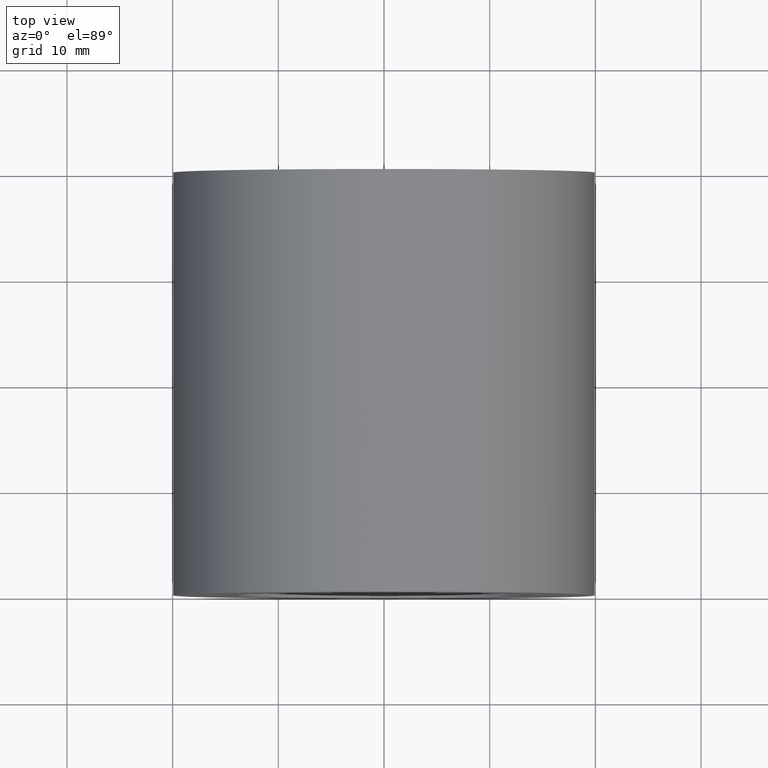
[diagram: clean part render]
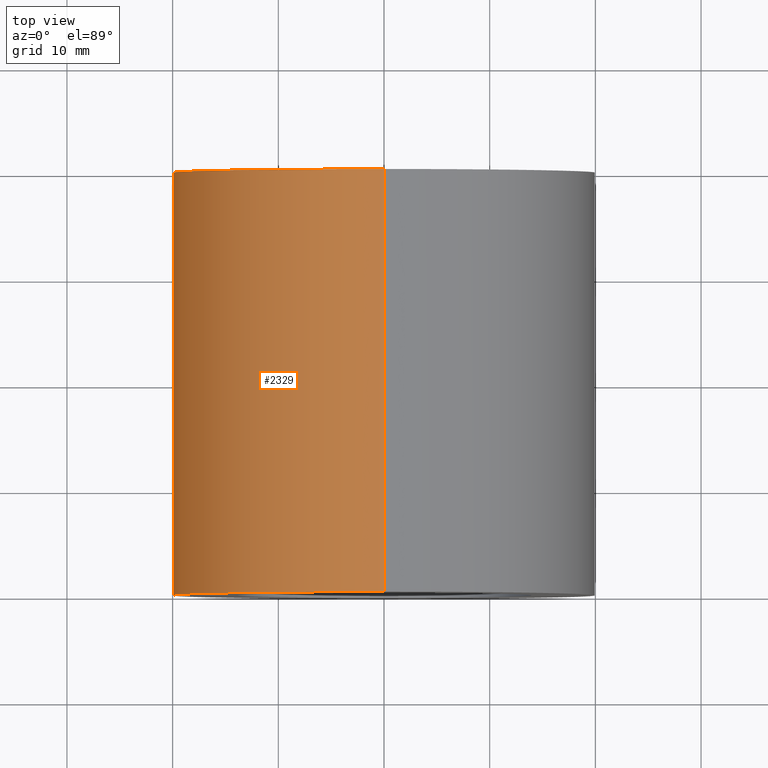
[diagram: same view with one face highlighted and labeled with its STEP entity id]
A machine part, top view. The second image highlights one B-rep face of the part: STEP entity #2329.
In plain terms, the highlighted cylindrical surface (partial cylindrical patch) has radius 20 mm, axis along (-0, 1, -0).
Its self-contained STEP definition (entity closure, byte-faithful):
#35 = ORIENTED_EDGE ( 'NONE', *, *, #2003, .T. ) ;
#67 = CARTESIAN_POINT ( 'NONE',  ( 0.000000000000000000, 40.00000000000000000, 0.000000000000000000 ) ) ;
#401 = VECTOR ( 'NONE', #14401, 1000.000000000000000 ) ;
#403 = CARTESIAN_POINT ( 'NONE',  ( 2.449293598294708485E-15, 40.00000000000000000, -20.00000000000001776 ) ) ;
#934 = LINE ( 'NONE', #4705, #401 ) ;
#2003 = EDGE_CURVE ( 'NONE', #14353, #12767, #11589, .T. ) ;
#2143 = LINE ( 'NONE', #9937, #13534 ) ;
#2160 = CARTESIAN_POINT ( 'NONE',  ( 0.000000000000000000, 40.00000000000000000, 0.000000000000000000 ) ) ;
#2329 = ADVANCED_FACE ( 'NONE', ( #11419 ), #14771, .T. ) ;
#2556 = DIRECTION ( 'NONE',  ( -0.000000000000000000, 1.000000000000000000, -0.000000000000000000 ) ) ;
#2607 = AXIS2_PLACEMENT_3D ( 'NONE', #67, #7121, #5927 ) ;
#3675 = AXIS2_PLACEMENT_3D ( 'NONE', #2160, #4690, #14171 ) ;
#3895 = DIRECTION ( 'NONE',  ( 0.000000000000000000, 0.000000000000000000, 1.000000000000000000 ) ) ;
#4117 = DIRECTION ( 'NONE',  ( -0.000000000000000000, 1.000000000000000000, -0.000000000000000000 ) ) ;
#4690 = DIRECTION ( 'NONE',  ( -0.000000000000000000, 1.000000000000000000, -0.000000000000000000 ) ) ;
#4705 = CARTESIAN_POINT ( 'NONE',  ( 2.449293598294707302E-15, 40.00000000000000000, -20.00000000000000711 ) ) ;
#5041 = EDGE_CURVE ( 'NONE', #14353, #9663, #934, .T. ) ;
#5192 = CARTESIAN_POINT ( 'NONE',  ( 0.000000000000000000, 40.00000000000000000, 20.00000000000001421 ) ) ;
#5927 = DIRECTION ( 'NONE',  ( 0.000000000000000000, 0.000000000000000000, 1.000000000000000000 ) ) ;
#6373 = EDGE_LOOP ( 'NONE', ( #8201, #35, #13458, #14109 ) ) ;
#7121 = DIRECTION ( 'NONE',  ( -0.000000000000000000, 1.000000000000000000, -0.000000000000000000 ) ) ;
#8201 = ORIENTED_EDGE ( 'NONE', *, *, #5041, .F. ) ;
#9657 = CARTESIAN_POINT ( 'NONE',  ( 0.000000000000000000, 0.000000000000000000, 0.000000000000000000 ) ) ;
#9663 = VERTEX_POINT ( 'NONE', #403 ) ;
#9937 = CARTESIAN_POINT ( 'NONE',  ( 0.000000000000000000, 40.00000000000000000, 20.00000000000000711 ) ) ;
#11419 = FACE_OUTER_BOUND ( 'NONE', #6373, .T. ) ;
#11589 = CIRCLE ( 'NONE', #12681, 20.00000000000000000 ) ;
#11910 = EDGE_CURVE ( 'NONE', #12767, #12537, #2143, .T. ) ;
#12537 = VERTEX_POINT ( 'NONE', #5192 ) ;
#12617 = CARTESIAN_POINT ( 'NONE',  ( 0.000000000000000000, 0.000000000000000000, 20.00000000000000000 ) ) ;
#12681 = AXIS2_PLACEMENT_3D ( 'NONE', #9657, #2556, #3895 ) ;
#12767 = VERTEX_POINT ( 'NONE', #12617 ) ;
#12957 = EDGE_CURVE ( 'NONE', #9663, #12537, #15143, .T. ) ;
#13458 = ORIENTED_EDGE ( 'NONE', *, *, #11910, .T. ) ;
#13534 = VECTOR ( 'NONE', #4117, 1000.000000000000000 ) ;
#13748 = CARTESIAN_POINT ( 'NONE',  ( 2.449293598294706907E-15, 0.000000000000000000, -20.00000000000000000 ) ) ;
#14109 = ORIENTED_EDGE ( 'NONE', *, *, #12957, .F. ) ;
#14171 = DIRECTION ( 'NONE',  ( 0.000000000000000000, 0.000000000000000000, 1.000000000000000000 ) ) ;
#14353 = VERTEX_POINT ( 'NONE', #13748 ) ;
#14401 = DIRECTION ( 'NONE',  ( -0.000000000000000000, 1.000000000000000000, -0.000000000000000000 ) ) ;
#14771 = CYLINDRICAL_SURFACE ( 'NONE', #3675, 20.00000000000000711 ) ;
#15143 = CIRCLE ( 'NONE', #2607, 20.00000000000001421 ) ;